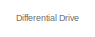
[diagram: root canvas - part 1/3, top center region]
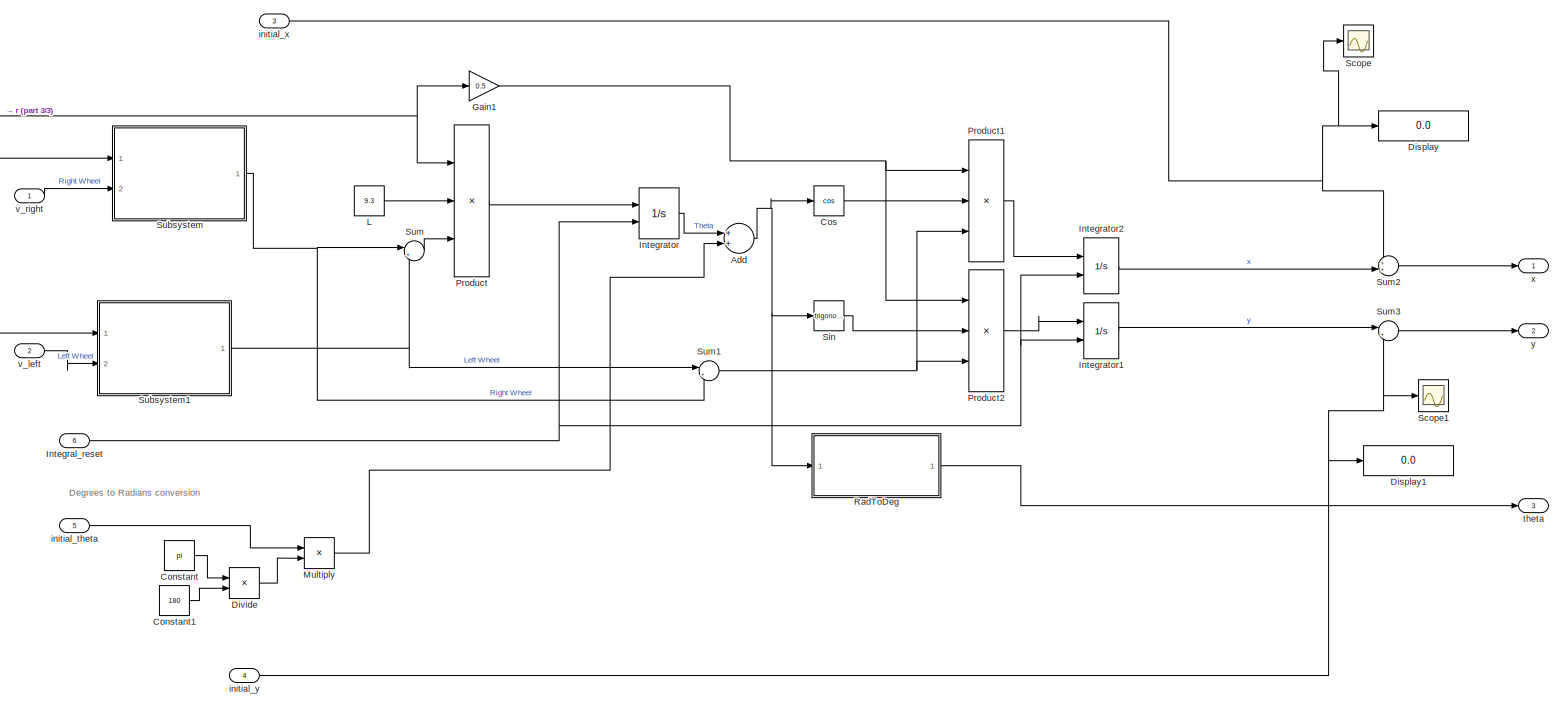
[diagram: root canvas - part 2/3, most of the canvas]
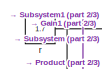
[diagram: root canvas - part 3/3, top left region]
MODEL slx_379bb345ff9d
KIND model
CONFIG AbsTol = auto
CONFIG EnableMultiTasking = off
CONFIG FixedStep = 0.01
CONFIG MaxStep = auto
CONFIG MinStep = auto
CONFIG RelTol = 1e-3
CONFIG SampleTimeConstraint = Unconstrained
CONFIG Solver = VariableStepAuto
CONFIG SolverName = VariableStepAuto
CONFIG StartTime = 0.0
CONFIG StopTime = 20
BLOCK [Sum] Add
  InputSameDT = off
  OutDataTypeStr = Inherit: Inherit via internal rule
  Ports = [2, 1]
  SaturateOnIntegerOverflow = off
BLOCK [Constant] Constant
  Value = pi
BLOCK [Constant] Constant1
  Value = 180
BLOCK [Trigonometry] Cos
  Operator = cos
  Ports = [1, 1]
BLOCK [Display] Display
  Decimation = 1
  Ports = [1]
BLOCK [Display] Display1
  Decimation = 1
  Ports = [1]
BLOCK [Product] Divide
  InputSameDT = off
  Inputs = */
  OutDataTypeStr = Inherit: Inherit via internal rule
  Ports = [2, 1]
  RndMeth = Floor
  SaturateOnIntegerOverflow = off
BLOCK [Gain] Gain1
  Gain = 0.5
  OutDataTypeStr = Inherit: Inherit via internal rule
  ParamDataTypeStr = Inherit: Inherit via internal rule
  SaturateOnIntegerOverflow = off
BLOCK [Inport] Integral_reset 
  IconDisplay = Port number
  Port = 6
BLOCK [Integrator] Integrator
  ExternalReset = rising
  Ports = [2, 1]
BLOCK [Integrator] Integrator1
  ExternalReset = rising
  Ports = [2, 1]
BLOCK [Integrator] Integrator2
  ExternalReset = rising
  Ports = [2, 1]
BLOCK [Constant] L
  Value = 9.3
BLOCK [Product] Multiply
  InputSameDT = off
  OutDataTypeStr = Inherit: Inherit via internal rule
  Ports = [2, 1]
  RndMeth = Floor
  SaturateOnIntegerOverflow = off
BLOCK [Product] Product
  InputSameDT = off
  Inputs = //*
  OutDataTypeStr = Inherit: Inherit via internal rule
  Ports = [3, 1]
  RndMeth = Floor
  SaturateOnIntegerOverflow = off
BLOCK [Product] Product1
  InputSameDT = off
  Inputs = 3
  OutDataTypeStr = Inherit: Inherit via internal rule
  Ports = [3, 1]
  RndMeth = Floor
  SaturateOnIntegerOverflow = off
BLOCK [Product] Product2
  InputSameDT = off
  Inputs = 3
  OutDataTypeStr = Inherit: Inherit via internal rule
  Ports = [3, 1]
  RndMeth = Floor
  SaturateOnIntegerOverflow = off
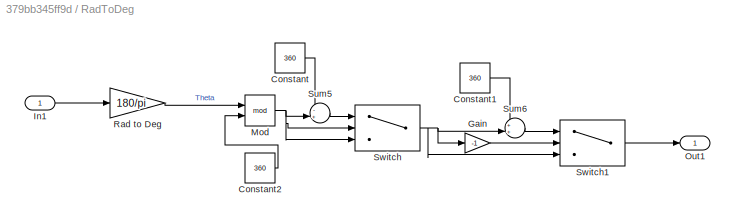
BLOCK [SubSystem] RadToDeg
  Ports = [1, 1]
  RequestExecContextInheritance = off
BLOCK [Constant] RadToDeg/Constant
  Value = 360
BLOCK [Constant] RadToDeg/Constant1
  Value = 360
BLOCK [Constant] RadToDeg/Constant2
  Value = 360
BLOCK [Gain] RadToDeg/Gain
  Gain = -1
  OutDataTypeStr = Inherit: Inherit via internal rule
  ParamDataTypeStr = Inherit: Inherit via internal rule
  SaturateOnIntegerOverflow = off
BLOCK [Inport] RadToDeg/In1
  IconDisplay = Port number
BLOCK [Math] RadToDeg/Mod
  Operator = mod
  Ports = [2, 1]
BLOCK [Outport] RadToDeg/Out1
  IconDisplay = Port number
BLOCK [Gain] RadToDeg/Rad to Deg
  Gain = 180/pi
  OutDataTypeStr = Inherit: Inherit via internal rule
  ParamDataTypeStr = Inherit: Inherit via internal rule
  SaturateOnIntegerOverflow = off
BLOCK [Sum] RadToDeg/Sum5
  IconShape = round
  InputSameDT = off
  Inputs = -+|
  OutDataTypeStr = Inherit: Inherit via internal rule
  Ports = [2, 1]
  SaturateOnIntegerOverflow = off
BLOCK [Sum] RadToDeg/Sum6
  IconShape = round
  InputSameDT = off
  Inputs = ++|
  OutDataTypeStr = Inherit: Inherit via internal rule
  Ports = [2, 1]
  SaturateOnIntegerOverflow = off
BLOCK [Switch] RadToDeg/Switch
  Criteria = u2 > Threshold
  InputSameDT = off
  SaturateOnIntegerOverflow = off
  Threshold = 180
  ZeroCross = off
BLOCK [Switch] RadToDeg/Switch1
  Criteria = u2 > Threshold
  InputSameDT = off
  SaturateOnIntegerOverflow = off
  Threshold = 180
  ZeroCross = off
BLOCK [Scope] Scope
  Floating = off
  NumInputPorts = 1
  Ports = [1]
  ScopeSpecificationString = Simulink.scopes.TimeScopeBlockCfg('CurrentConfiguration', extmgr.ConfigurationSet(extmgr.Configuration('Core','General UI',true),extmgr.Configuration('Core','Source UI',true),extmgr.Configuration('Sources','WiredSimulink',true),extmgr.Configuration('Visuals','Time Domain',true,'SerializedDisplays',{struct('MinYLimReal','-1.00000','MaxYLimReal','1.00000','YLabelReal','','MinYLimMag','0.00000','MaxY...<+1331ch>
BLOCK [Scope] Scope1
  Floating = off
  NumInputPorts = 1
  Ports = [1]
  ScopeSpecificationString = Simulink.scopes.TimeScopeBlockCfg('CurrentConfiguration', extmgr.ConfigurationSet(extmgr.Configuration('Core','General UI',true),extmgr.Configuration('Core','Source UI',true),extmgr.Configuration('Sources','WiredSimulink',true,'DataLoggingVariableName','ScopeData1'),extmgr.Configuration('Visuals','Time Domain',true),extmgr.Configuration('Tools','Plot Navigation',true),extmgr.Configuration('Tools',...<+40ch>
BLOCK [Trigonometry] Sin
  Ports = [1, 1]
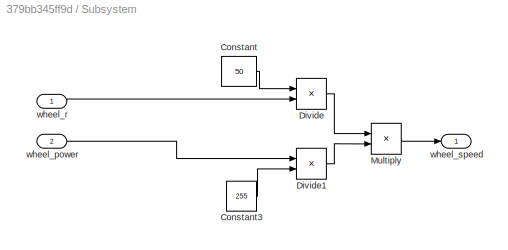
BLOCK [SubSystem] Subsystem
  Ports = [2, 1]
  RequestExecContextInheritance = off
BLOCK [Constant] Subsystem/Constant
  Value = 50
BLOCK [Constant] Subsystem/Constant3
  Value = 255
BLOCK [Product] Subsystem/Divide
  InputSameDT = off
  Inputs = */
  OutDataTypeStr = Inherit: Inherit via internal rule
  Ports = [2, 1]
  RndMeth = Floor
  SaturateOnIntegerOverflow = off
BLOCK [Product] Subsystem/Divide1
  InputSameDT = off
  Inputs = */
  OutDataTypeStr = Inherit: Inherit via internal rule
  Ports = [2, 1]
  RndMeth = Floor
  SaturateOnIntegerOverflow = off
BLOCK [Product] Subsystem/Multiply
  InputSameDT = off
  OutDataTypeStr = Inherit: Inherit via internal rule
  Ports = [2, 1]
  RndMeth = Floor
  SaturateOnIntegerOverflow = off
BLOCK [Inport] Subsystem/wheel_power
  IconDisplay = Port number
  Port = 2
BLOCK [Inport] Subsystem/wheel_r
  IconDisplay = Port number
BLOCK [Outport] Subsystem/wheel_speed
  IconDisplay = Port number
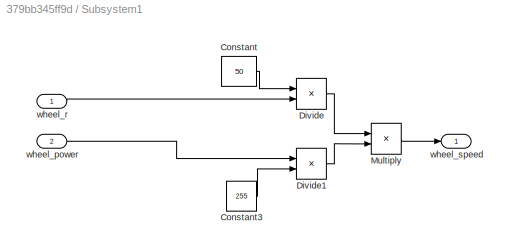
BLOCK [SubSystem] Subsystem1
  Ports = [2, 1]
  RequestExecContextInheritance = off
BLOCK [Constant] Subsystem1/Constant
  Value = 50
BLOCK [Constant] Subsystem1/Constant3
  Value = 255
BLOCK [Product] Subsystem1/Divide
  InputSameDT = off
  Inputs = */
  OutDataTypeStr = Inherit: Inherit via internal rule
  Ports = [2, 1]
  RndMeth = Floor
  SaturateOnIntegerOverflow = off
BLOCK [Product] Subsystem1/Divide1
  InputSameDT = off
  Inputs = */
  OutDataTypeStr = Inherit: Inherit via internal rule
  Ports = [2, 1]
  RndMeth = Floor
  SaturateOnIntegerOverflow = off
BLOCK [Product] Subsystem1/Multiply
  InputSameDT = off
  OutDataTypeStr = Inherit: Inherit via internal rule
  Ports = [2, 1]
  RndMeth = Floor
  SaturateOnIntegerOverflow = off
BLOCK [Inport] Subsystem1/wheel_power
  IconDisplay = Port number
  Port = 2
BLOCK [Inport] Subsystem1/wheel_r
  IconDisplay = Port number
BLOCK [Outport] Subsystem1/wheel_speed
  IconDisplay = Port number
BLOCK [Sum] Sum
  IconShape = round
  InputSameDT = off
  Inputs = |+-
  OutDataTypeStr = Inherit: Inherit via internal rule
  Ports = [2, 1]
  SaturateOnIntegerOverflow = off
BLOCK [Sum] Sum1
  IconShape = round
  InputSameDT = off
  Inputs = |++
  OutDataTypeStr = Inherit: Inherit via internal rule
  Ports = [2, 1]
  SaturateOnIntegerOverflow = off
BLOCK [Sum] Sum2
  IconShape = round
  InputSameDT = off
  Inputs = ++|
  OutDataTypeStr = Inherit: Inherit via internal rule
  Ports = [2, 1]
  SaturateOnIntegerOverflow = off
BLOCK [Sum] Sum3
  IconShape = round
  InputSameDT = off
  Inputs = |++
  OutDataTypeStr = Inherit: Inherit via internal rule
  Ports = [2, 1]
  SaturateOnIntegerOverflow = off
BLOCK [Inport] initial_theta
  IconDisplay = Port number
  Port = 5
BLOCK [Inport] initial_x
  IconDisplay = Port number
  Port = 3
BLOCK [Inport] initial_y
  IconDisplay = Port number
  Port = 4
BLOCK [Constant] r
  Value = 1.7
BLOCK [Outport] theta
  IconDisplay = Port number
  OutDataTypeStr = double
  Port = 3
  PortDimensions = 1
  SampleTime = 0
  SamplingMode = Sample based
  SignalType = real
BLOCK [Inport] v_left
  IconDisplay = Port number
  OutDataTypeStr = double
  Port = 2
  PortDimensions = 1
  SamplingMode = Sample based
  SignalType = real
BLOCK [Inport] v_right
  IconDisplay = Port number
  OutDataTypeStr = double
  PortDimensions = 1
  SamplingMode = Sample based
  SignalType = real
BLOCK [Outport] x
  IconDisplay = Port number
  OutDataTypeStr = double
  PortDimensions = 1
  SampleTime = 0
  SamplingMode = Sample based
  SignalType = real
BLOCK [Outport] y
  IconDisplay = Port number
  OutDataTypeStr = double
  Port = 2
  PortDimensions = 1
  SampleTime = 0
  SamplingMode = Sample based
  SignalType = real
ANNOTATION (root): Differential Drive
ANNOTATION (root): Degrees to Radians conversion
NET Add:1 -> Cos:1, RadToDeg:1, Sin:1
LINE Constant1:1 -> Divide:2
LINE Constant:1 -> Divide:1
LINE Cos:1 -> Product1:2
LINE Divide:1 -> Multiply:2
NET Gain1:1 -> Product1:1, Product2:1
NET Integral_reset :1 -> Integrator1:2, Integrator2:2, Integrator:2
LINE Integrator1:1 -> Sum3:1
LINE Integrator2:1 -> Sum2:2
LINE Integrator:1 -> Add:1
LINE L:1 -> Product:2
LINE Multiply:1 -> Add:2
LINE Product1:1 -> Integrator2:1
LINE Product2:1 -> Integrator1:1
LINE Product:1 -> Integrator:1
LINE RadToDeg/Constant1:1 -> RadToDeg/Sum6:1
LINE RadToDeg/Constant2:1 -> RadToDeg/Mod:2
LINE RadToDeg/Constant:1 -> RadToDeg/Sum5:1
LINE RadToDeg/Gain:1 -> RadToDeg/Switch1:2
LINE RadToDeg/In1:1 -> RadToDeg/Rad to Deg:1
NET RadToDeg/Mod:1 -> RadToDeg/Sum5:2, RadToDeg/Switch:2, RadToDeg/Switch:3
LINE RadToDeg/Rad to Deg:1 -> RadToDeg/Mod:1
LINE RadToDeg/Sum5:1 -> RadToDeg/Switch:1
LINE RadToDeg/Sum6:1 -> RadToDeg/Switch1:1
LINE RadToDeg/Switch1:1 -> RadToDeg/Out1:1
NET RadToDeg/Switch:1 -> RadToDeg/Gain:1, RadToDeg/Sum6:2, RadToDeg/Switch1:3
LINE RadToDeg:1 -> theta:1
LINE Sin:1 -> Product2:2
LINE Subsystem/Constant3:1 -> Subsystem/Divide1:2
LINE Subsystem/Constant:1 -> Subsystem/Divide:1
LINE Subsystem/Divide1:1 -> Subsystem/Multiply:2
LINE Subsystem/Divide:1 -> Subsystem/Multiply:1
LINE Subsystem/Multiply:1 -> Subsystem/wheel_speed:1
LINE Subsystem/wheel_power:1 -> Subsystem/Divide1:1
LINE Subsystem/wheel_r:1 -> Subsystem/Divide:2
LINE Subsystem1/Constant3:1 -> Subsystem1/Divide1:2
LINE Subsystem1/Constant:1 -> Subsystem1/Divide:1
LINE Subsystem1/Divide1:1 -> Subsystem1/Multiply:2
LINE Subsystem1/Divide:1 -> Subsystem1/Multiply:1
LINE Subsystem1/Multiply:1 -> Subsystem1/wheel_speed:1
LINE Subsystem1/wheel_power:1 -> Subsystem1/Divide1:1
LINE Subsystem1/wheel_r:1 -> Subsystem1/Divide:2
NET Subsystem1:1 -> Sum1:1, Sum:2
NET Subsystem:1 -> Sum1:2, Sum:1
NET Sum1:1 -> Product1:3, Product2:3
LINE Sum2:1 -> x:1
LINE Sum3:1 -> y:1
LINE Sum:1 -> Product:3
LINE initial_theta:1 -> Multiply:1
NET initial_x:1 -> Display:1, Scope:1, Sum2:1
NET initial_y:1 -> Display1:1, Scope1:1, Sum3:2
NET r:1 -> Gain1:1, Product:1, Subsystem1:1, Subsystem:1
LINE v_left:1 -> Subsystem1:2
LINE v_right:1 -> Subsystem:2
note: NET lines group one-source signal fan-out (src -> all destinations, sorted); 1:1 wires keep LINE
